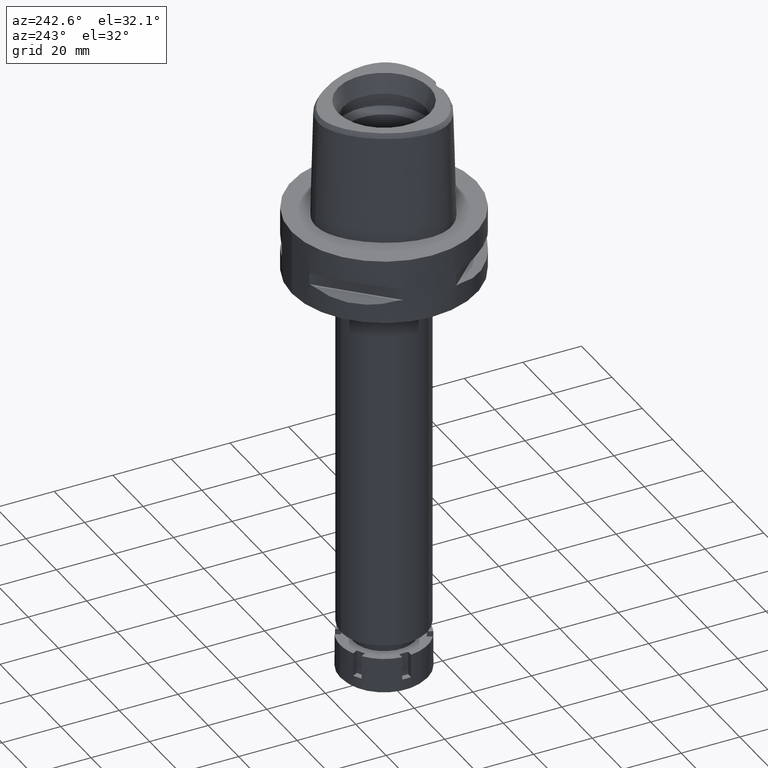
[diagram: clean part render]
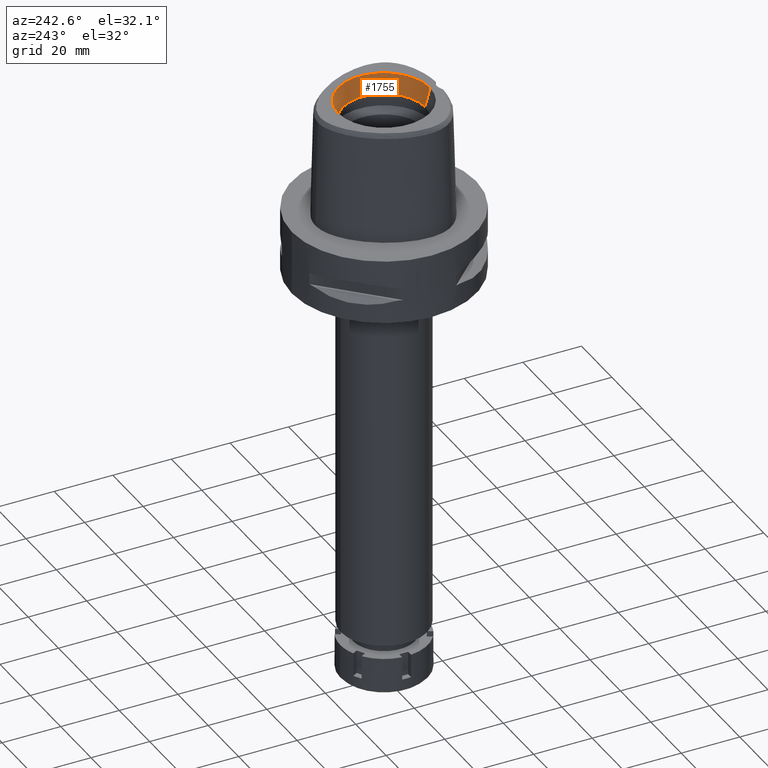
[diagram: same view with one face highlighted and labeled with its STEP entity id]
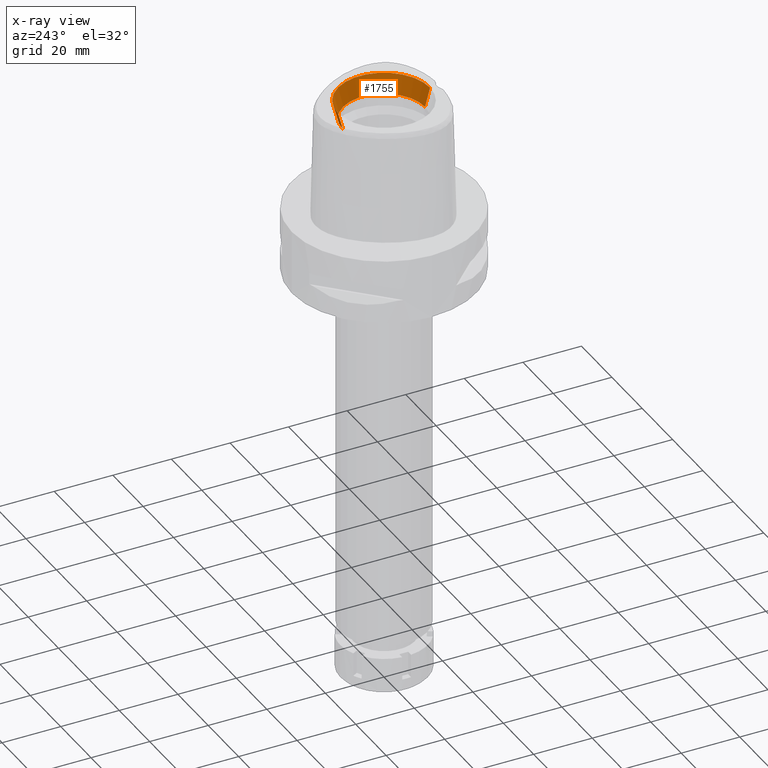
[diagram: x-ray of the same camera — body ghosted, the highlighted face saturated]
A machine part, auxiliary view. The second image highlights one B-rep face of the part: STEP entity #1755.
The next image is the same camera in x-ray: the body ghosted, the highlighted face saturated — about 0% of this face is hidden behind the body in this view.
In plain terms, the highlighted conical surface has half-angle 15 deg.
Its self-contained STEP definition (entity closure, byte-faithful):
#87 = EDGE_CURVE ( 'NONE', #1098, #4573, #3389, .T. ) ;
#252 = VERTEX_POINT ( 'NONE', #1750 ) ;
#312 = LINE ( 'NONE', #3717, #3248 ) ;
#600 = ORIENTED_EDGE ( 'NONE', *, *, #1844, .F. ) ;
#618 = ORIENTED_EDGE ( 'NONE', *, *, #87, .T. ) ;
#860 = DIRECTION ( 'NONE',  ( 0.0000000000000000000, 0.0000000000000000000, 1.000000000000000000 ) ) ;
#1057 = ORIENTED_EDGE ( 'NONE', *, *, #4364, .T. ) ;
#1098 = VERTEX_POINT ( 'NONE', #3907 ) ;
#1225 = CARTESIAN_POINT ( 'NONE',  ( 0.0000000000000000000, -14.00000000000000000, 31.60000000000000142 ) ) ;
#1526 = CIRCLE ( 'NONE', #2883, 15.71487483155999776 ) ;
#1706 = CARTESIAN_POINT ( 'NONE',  ( 0.0000000000000000000, 0.0000000000000000000, 31.60000000000000142 ) ) ;
#1750 = CARTESIAN_POINT ( 'NONE',  ( 0.0000000000000000000, 14.00000000000000000, 31.60000000000000142 ) ) ;
#1755 = ADVANCED_FACE ( 'NONE', ( #2939 ), #3926, .F. ) ;
#1844 = EDGE_CURVE ( 'NONE', #252, #4809, #312, .T. ) ;
#1859 = DIRECTION ( 'NONE',  ( 0.0000000000000000000, -1.000000000000000000, 0.0000000000000000000 ) ) ;
#1876 = CIRCLE ( 'NONE', #2229, 14.00000000000000000 ) ;
#2016 = CARTESIAN_POINT ( 'NONE',  ( 0.0000000000000000000, 15.71487483155999776, 38.00000000000000000 ) ) ;
#2229 = AXIS2_PLACEMENT_3D ( 'NONE', #1706, #4416, #1859 ) ;
#2490 = DIRECTION ( 'NONE',  ( 0.0000000000000000000, 1.000000000000000000, 0.0000000000000000000 ) ) ;
#2692 = VECTOR ( 'NONE', #4237, 1000.000000000000000 ) ;
#2797 = EDGE_LOOP ( 'NONE', ( #600, #4612, #618, #1057 ) ) ;
#2883 = AXIS2_PLACEMENT_3D ( 'NONE', #2997, #860, #4291 ) ;
#2939 = FACE_OUTER_BOUND ( 'NONE', #2797, .T. ) ;
#2997 = CARTESIAN_POINT ( 'NONE',  ( 0.0000000000000000000, 0.0000000000000000000, 38.00000000000000000 ) ) ;
#3235 = EDGE_CURVE ( 'NONE', #1098, #252, #1876, .T. ) ;
#3248 = VECTOR ( 'NONE', #4595, 1000.000000000000000 ) ;
#3389 = LINE ( 'NONE', #1225, #2692 ) ;
#3717 = CARTESIAN_POINT ( 'NONE',  ( 0.0000000000000000000, 14.00000000000000000, 31.60000000000000142 ) ) ;
#3777 = DIRECTION ( 'NONE',  ( 0.0000000000000000000, 0.0000000000000000000, 1.000000000000000000 ) ) ;
#3907 = CARTESIAN_POINT ( 'NONE',  ( 0.0000000000000000000, -14.00000000000000000, 31.60000000000000142 ) ) ;
#3926 = CONICAL_SURFACE ( 'NONE', #4825, 14.85743741577999977, 0.2617993877991000029 ) ;
#4237 = DIRECTION ( 'NONE',  ( 0.0000000000000000000, -0.2588190451025869088, 0.9659258262890505486 ) ) ;
#4291 = DIRECTION ( 'NONE',  ( 0.0000000000000000000, -1.000000000000000000, 0.0000000000000000000 ) ) ;
#4364 = EDGE_CURVE ( 'NONE', #4573, #4809, #1526, .T. ) ;
#4416 = DIRECTION ( 'NONE',  ( 0.0000000000000000000, 0.0000000000000000000, 1.000000000000000000 ) ) ;
#4573 = VERTEX_POINT ( 'NONE', #4804 ) ;
#4595 = DIRECTION ( 'NONE',  ( 0.0000000000000000000, 0.2588190451025869088, 0.9659258262890505486 ) ) ;
#4612 = ORIENTED_EDGE ( 'NONE', *, *, #3235, .F. ) ;
#4804 = CARTESIAN_POINT ( 'NONE',  ( 0.0000000000000000000, -15.71487483155999776, 38.00000000000000000 ) ) ;
#4809 = VERTEX_POINT ( 'NONE', #2016 ) ;
#4825 = AXIS2_PLACEMENT_3D ( 'NONE', #5405, #3777, #2490 ) ;
#5405 = CARTESIAN_POINT ( 'NONE',  ( 0.0000000000000000000, 0.0000000000000000000, 34.79999999999999716 ) ) ;